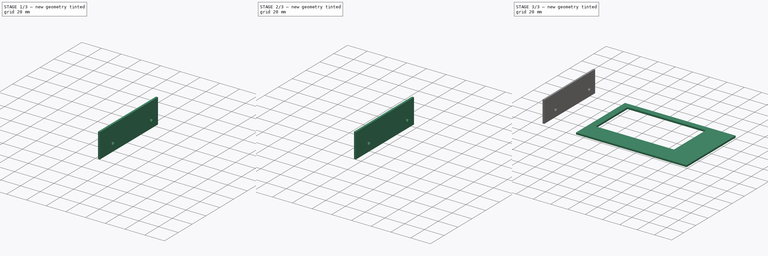
[diagram: build sequence overview — one tinted view per stage of 3, left to right]
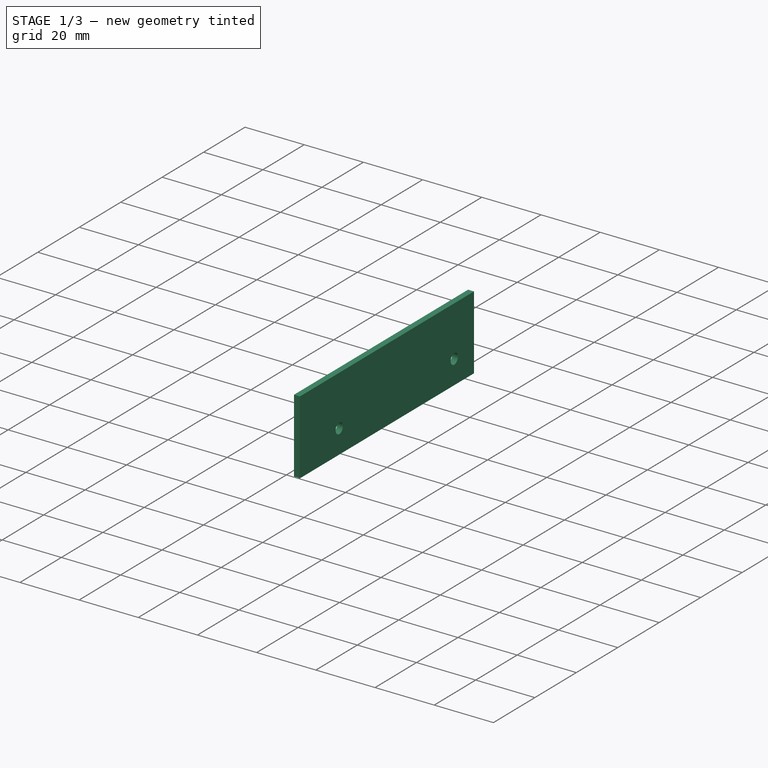
[diagram: stage 1 of 3 — iso view after this stage's code; geometry added in this stage tinted green]
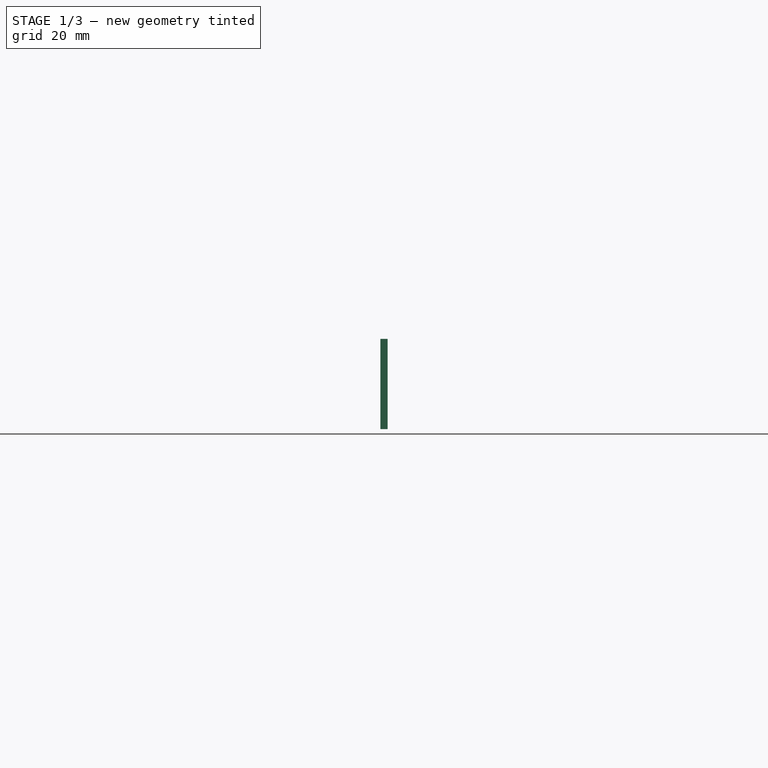
[diagram: stage 1 of 3 — front view after this stage's code; geometry added in this stage tinted green]
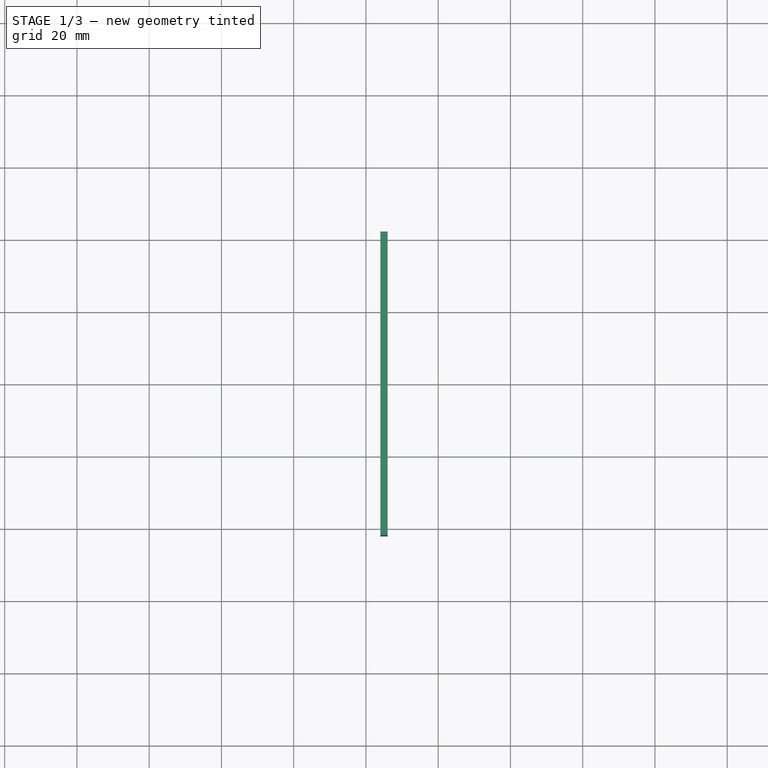
[diagram: stage 1 of 3 — top view after this stage's code; geometry added in this stage tinted green]
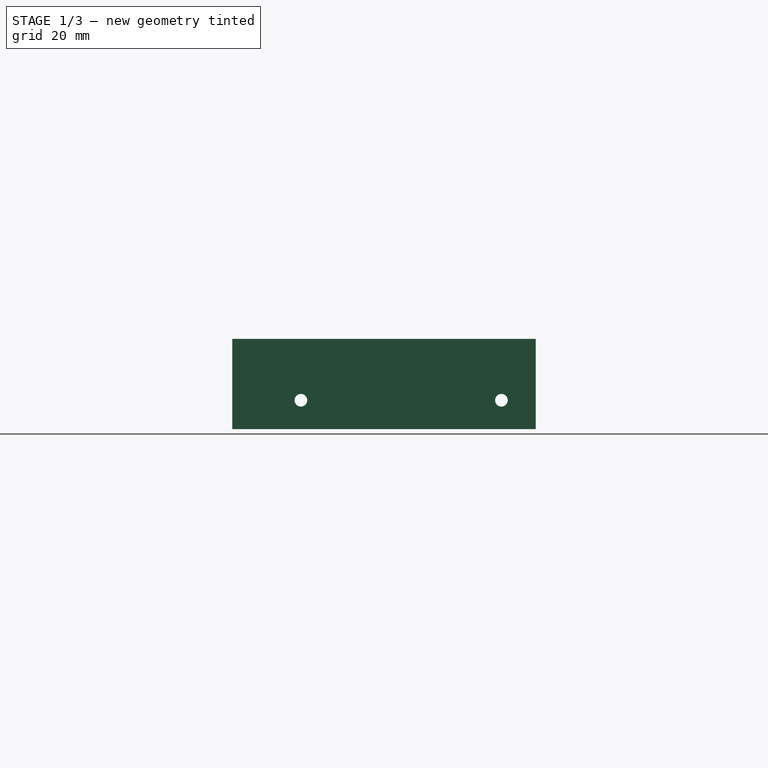
[diagram: stage 1 of 3 — right view after this stage's code; geometry added in this stage tinted green]
FCSTD DOCUMENT  (FreeCAD 0.19R24291 (Git))
Label: PCB_holder
License: All rights reserved
LicenseURL: http://en.wikipedia.org/wiki/All_rights_reserved
objects: Sketcher::SketchObject×5, Part::Extrusion×2, PartDesign::Body×2, Spreadsheet::Sheet×1, PartDesign::Pocket×1, PartDesign::Pad×1, App::Part×1, Part::Mirroring×1
note: 14 computed .brp shape members not serialized (recipe doc carries the construction recipe); baked Part::Feature solids carry a one-line shape summary decoded from their .brp

FEATURE [Sketcher::SketchObject] Sketch003
  FullyConstrained = true
  MapMode = 5
  Support = -> [XY_Plane002]
  expr: Constraints[31] = <<Params>>.Cutout_Margin_Top
  expr: Constraints[30] = <<Params>>.Cutout_Margin_Left
  expr: Constraints[21] = <<Params>>.Hole1_X
  expr: Constraints[19] = <<Params>>.Hole4_X
  expr: Constraints[18] = <<Params>>.Hole3_X
  expr: Constraints[43] = <<Params>>.Side_Height
  expr: Constraints[20] = <<Params>>.Hole2_X
  expr: Constraints[15] = <<Params>>.Hole4_Y
  expr: Constraints[32] = <<Params>>.Cutout_Margin_Right
  expr: Constraints[44] = <<Params>>.Cutout_Margin_Bottom
  expr: Constraints[8] = <<Params>>.PCB_Width
  expr: Constraints[13] = <<Params>>.Sockets_In_D / 2
  expr: Constraints[42] = <<Params>>.Case_Width
  expr: Constraints[12] = <<Params>>.Sockets_In_D / 2
  expr: Constraints[11] = <<Params>>.Sockets_In_D / 2
  expr: Constraints[10] = <<Params>>.Sockets_In_D / 2
  expr: Constraints[17] = <<Params>>.Hole3_Y
  expr: Constraints[9] = <<Params>>.PCB_Height
  expr: Constraints[14] = <<Params>>.Hole1_Y
  expr: Constraints[16] = <<Params>>.Hole2_Y
  sketch-geometry (16):
    g0: LineSegment StartX=-51 StartY=39 StartZ=0 EndX=55.35 EndY=39 EndZ=0
    g1: LineSegment StartX=55.35 StartY=39 StartZ=0 EndX=55.35 EndY=-24.15 EndZ=0
    g2: LineSegment StartX=55.35 StartY=-24.15 StartZ=0 EndX=-51 EndY=-24.15 EndZ=0
    g3: LineSegment StartX=-51 StartY=-24.15 StartZ=0 EndX=-51 EndY=39 EndZ=0
    g4: Circle CenterX=-46.3 CenterY=26.3 CenterZ=0 NormalX=0 NormalY=0 NormalZ=1 AngleXU=0 Radius=2.1
    g5: Circle CenterX=-46.3 CenterY=-9.15 CenterZ=0 NormalX=0 NormalY=0 NormalZ=1 AngleXU=0 Radius=2.1
    g6: Circle CenterX=50.6 CenterY=-9.15 CenterZ=0 NormalX=0 NormalY=0 NormalZ=1 AngleXU=0 Radius=2.1
    g7: Circle CenterX=50.6 CenterY=26.3 CenterZ=0 NormalX=0 NormalY=0 NormalZ=1 AngleXU=0 Radius=2.1
    g8: LineSegment StartX=-43.75 StartY=32.3 StartZ=0 EndX=46.85 EndY=32.3 EndZ=0
    g9: LineSegment StartX=46.85 StartY=32.3 StartZ=0 EndX=46.85 EndY=-38 EndZ=0
    g10: LineSegment StartX=46.85 StartY=-38 StartZ=0 EndX=-43.75 EndY=-38 EndZ=0
    g11: LineSegment StartX=-43.75 StartY=-38 StartZ=0 EndX=-43.75 EndY=32.3 EndZ=0
    g12: LineSegment StartX=-64 StartY=42 StartZ=0 EndX=64 EndY=42 EndZ=0
    g13: LineSegment StartX=64 StartY=42 StartZ=0 EndX=64 EndY=-42 EndZ=0
    g14: LineSegment StartX=64 StartY=-42 StartZ=0 EndX=-64 EndY=-42 EndZ=0
    g15: LineSegment StartX=-64 StartY=-42 StartZ=0 EndX=-64 EndY=42 EndZ=0
  constraints (47):
    c: Coincident(g0,g1)
    c: Coincident(g1,g2)
    c: Coincident(g2,g3)
    c: Coincident(g3,g0)
    c: Horizontal(g0)
    c: Horizontal(g2)
    c: Vertical(g1)
    c: Vertical(g3)
    c: DistanceX(g0,g0) = 106.35
    c: DistanceY(g3,g3) = 63.15
    c: Radius(g4) = 2.1
    c: Radius(g5) = 2.1
    c: Radius(g7) = 2.1
    c: Radius(g6) = 2.1
    c: DistanceX(g0,g4) = 4.7
    c: DistanceX(g2,g5) = 4.7
    c: DistanceX(g7,g0) = 4.75
    c: DistanceX(g6,g1) = 4.75
    c: DistanceY(g1,g6) = 15
    c: DistanceY(g2,g5) = 15
    c: DistanceY(g7,g0) = 12.7
    c: DistanceY(g4,g0) = 12.7
    c: Coincident(g8,g9)
    c: Coincident(g9,g10)
    c: Coincident(g10,g11)
    c: Coincident(g11,g8)
    c: Horizontal(g8)
    c: Horizontal(g10)
    c: Vertical(g9)
    c: Vertical(g11)
    c: DistanceX(g0,g8) = 7.25
    c: DistanceY(g8,g0) = 6.7
    c: DistanceX(g9,g1) = 8.5
    c: Coincident(g12,g13)
    c: Coincident(g13,g14)
    c: Coincident(g14,g15)
    c: Coincident(g15,g12)
    c: Horizontal(g12)
    c: Horizontal(g14)
    c: Vertical(g13)
    c: Vertical(g15)
    c: Symmetric(g12,g13,g-1)
    c: DistanceX(g12,g12) = 128
    c: DistanceY(g15,g15) = 84
    c: DistanceY(g13,g9) = 4
    c: DistanceX(g12,g0) = 13
    c: DistanceY(g0,g12) = 3
FEATURE [PartDesign::Pad] Pad
  Direction = (1,1,1)
  Length = 2
  Length2 = 100
  Profile = -> Sketch003
  Type = 0
  expr: Length = <<Params>>.Case_Thickness
FEATURE [Sketcher::SketchObject] Sketch004
  FullyConstrained = true
  MapMode = 5
  Placement = pos=(64,0,0) rot=(0.57735,0.57735,0.57735;2.0944rad)
  Support = -> [Pad]
  expr: Constraints[15] = <<Params>>.Side_Hole_X
  expr: Constraints[13] = <<Params>>.Side_Bottom_Hole_Y
  expr: Constraints[12] = <<Params>>.Side_Hole_D / 2
  expr: Constraints[11] = <<Params>>.Side_Hole_D / 2
  expr: Constraints[10] = <<Params>>.Case_Thickness
  expr: Constraints[17] = <<Params>>.Side_Height / 2
  expr: Constraints[14] = <<Params>>.Side_Top_Hole_Y
  expr: Constraints[9] = <<Params>>.Side_Width
  expr: Constraints[16] = <<Params>>.Side_Hole_X
  expr: Constraints[8] = <<Params>>.Side_Height
  sketch-geometry (6):
    g0: LineSegment StartX=-42 StartY=2 StartZ=0 EndX=42 EndY=2 EndZ=0
    g1: LineSegment StartX=42 StartY=2 StartZ=0 EndX=42 EndY=-23 EndZ=0
    g2: LineSegment StartX=42 StartY=-23 StartZ=0 EndX=-42 EndY=-23 EndZ=0
    g3: LineSegment StartX=-42 StartY=-23 StartZ=0 EndX=-42 EndY=2 EndZ=0
    g4: Circle CenterX=-23 CenterY=-15 CenterZ=0 NormalX=0 NormalY=0 NormalZ=1 AngleXU=0 Radius=1.75
    g5: Circle CenterX=32.5 CenterY=-15 CenterZ=0 NormalX=0 NormalY=0 NormalZ=1 AngleXU=0 Radius=1.75
  constraints (18):
    c: Coincident(g0,g1)
    c: Coincident(g1,g2)
    c: Coincident(g2,g3)
    c: Coincident(g3,g0)
    c: Horizontal(g0)
    c: Horizontal(g2)
    c: Vertical(g1)
    c: Vertical(g3)
    c: DistanceX(g0,g0) = 84
    c: DistanceY(g3,g3) = 25
    c: DistanceY(g-1,g0) = 2
    c: Radius(g5) = 1.75
    c: Radius(g4) = 1.75
    c: DistanceX(g4,g0) = 65
    c: DistanceX(g5,g0) = 9.5
    c: DistanceY(g5,g0) = 17
    c: DistanceY(g4,g0) = 17
    c: DistanceX(g-1,g1) = 42
FEATURE [PartDesign::Body] Body001
  Group = -> [Sketch003,Pad,Sketch004]
  Origin = -> Origin002
  Tip = -> Pad
FEATURE [App::Part] Part
  Group = -> [Body001]
  Origin = -> Origin001
FEATURE [Part::Extrusion] Extrude001
  Base = -> Sketch004
  Dir = (1,0,0)
  DirMode = 2
  FaceMakerClass = Part::FaceMakerBullseye
  LengthFwd = 2
  LengthRev = 0
  Solid = true
  Symmetric = false
  expr: LengthFwd = <<Params>>.Case_Thickness
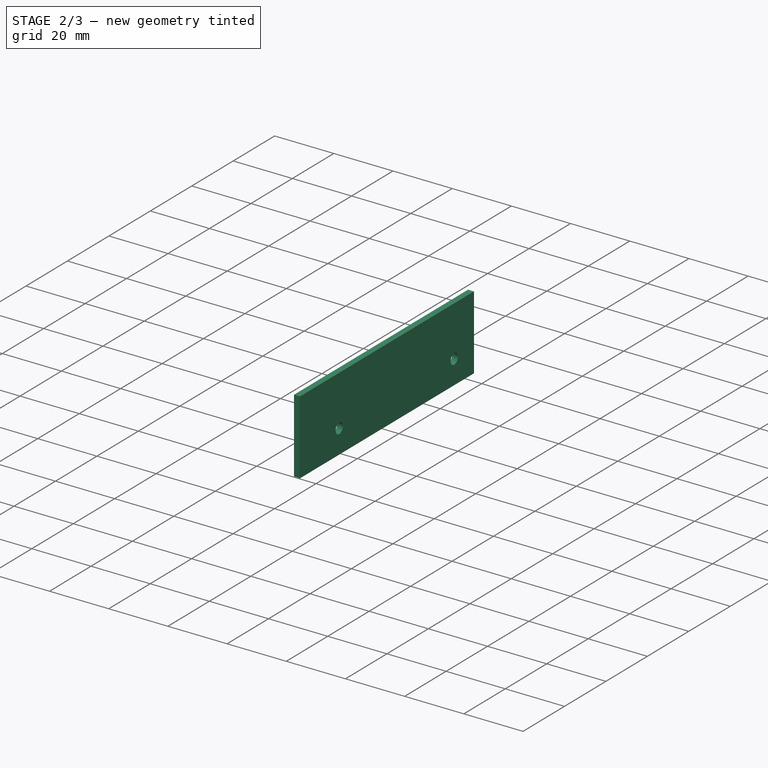
[diagram: stage 2 of 3 — iso view after this stage's code; geometry added in this stage tinted green]
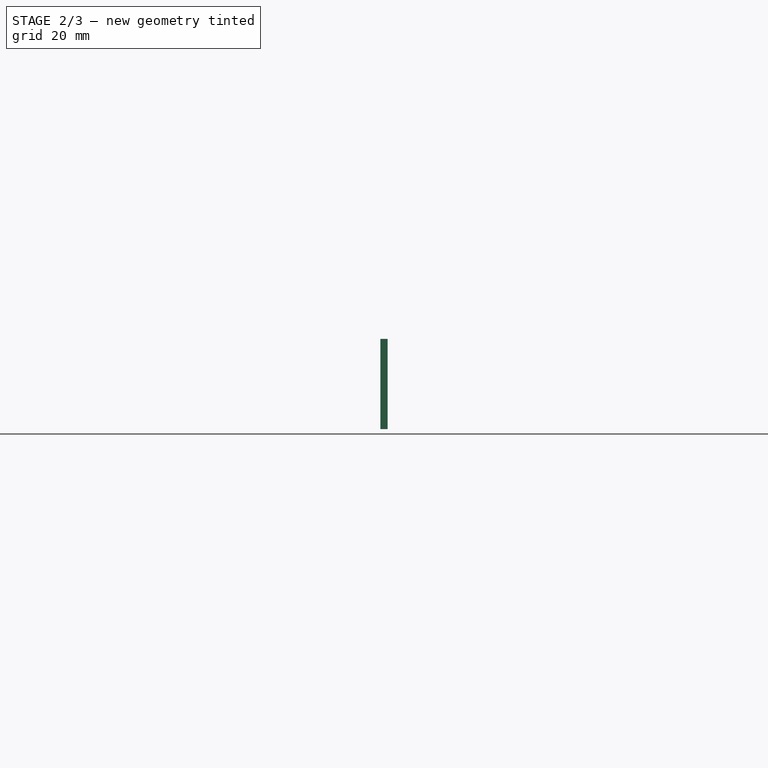
[diagram: stage 2 of 3 — front view after this stage's code; geometry added in this stage tinted green]
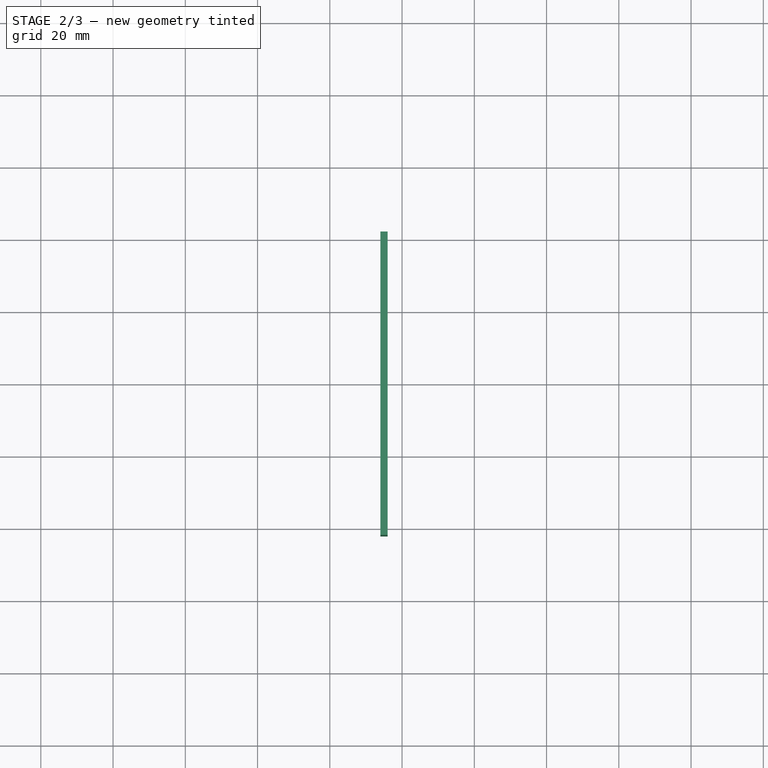
[diagram: stage 2 of 3 — top view after this stage's code; geometry added in this stage tinted green]
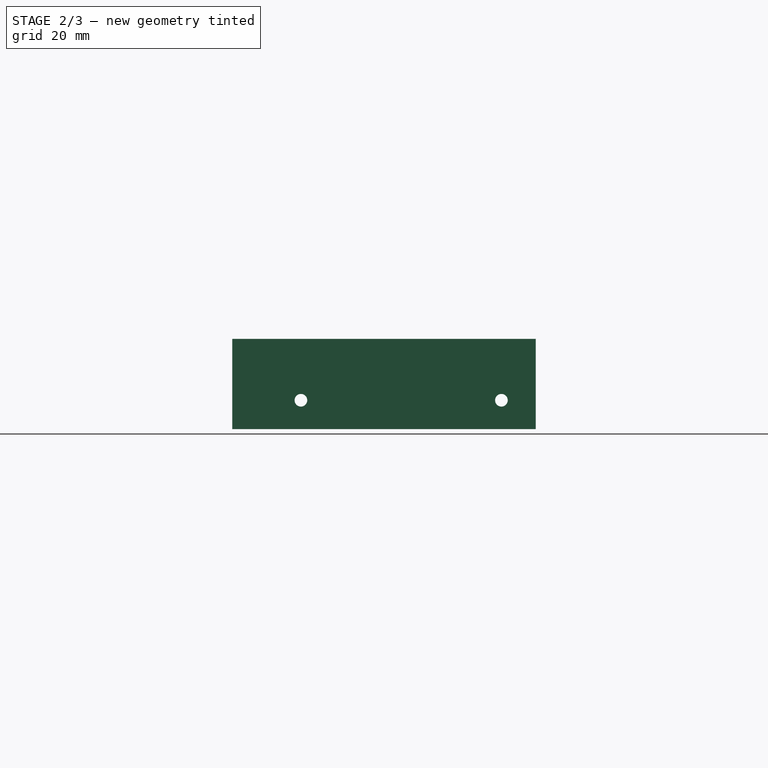
[diagram: stage 2 of 3 — right view after this stage's code; geometry added in this stage tinted green]
FEATURE [Part::Mirroring] Part__Mirroring  label="Extrude001 (Mirror #1)"
  Base = (0,0,0)
  Normal = (1,0,0)
  Source = -> Extrude001
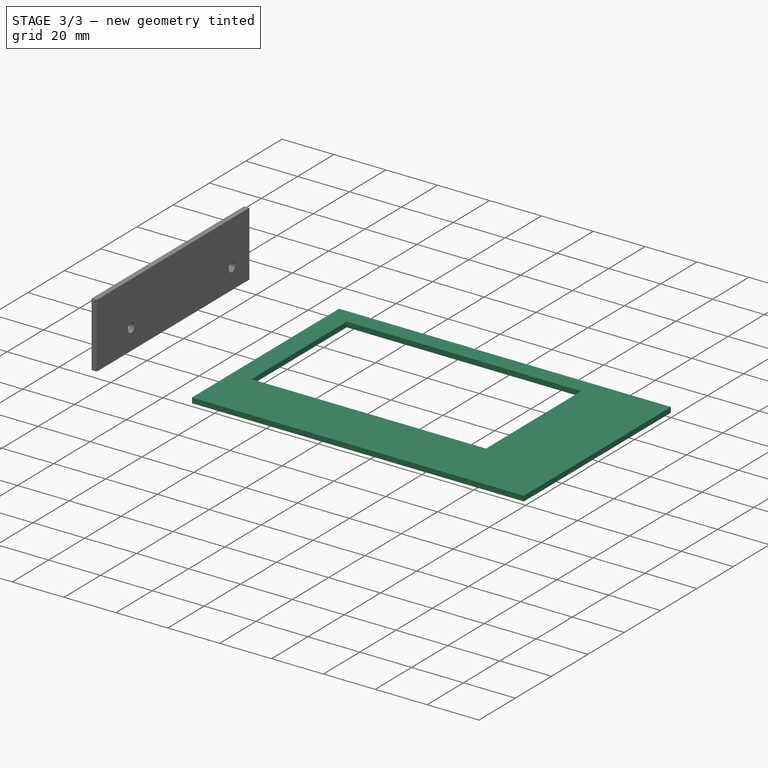
[diagram: stage 3 of 3 — iso view after this stage's code; geometry added in this stage tinted green]
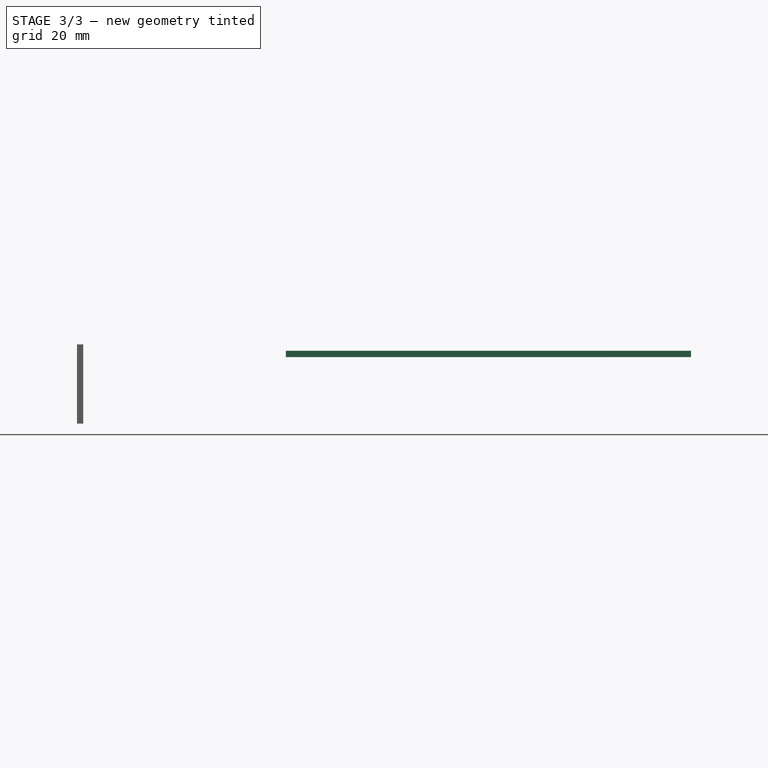
[diagram: stage 3 of 3 — front view after this stage's code; geometry added in this stage tinted green]
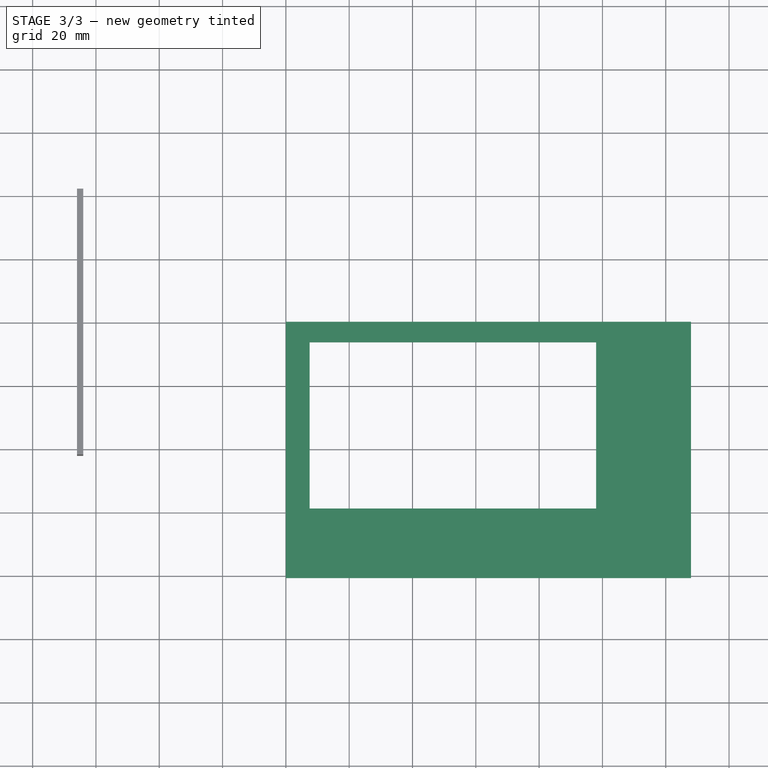
[diagram: stage 3 of 3 — top view after this stage's code; geometry added in this stage tinted green]
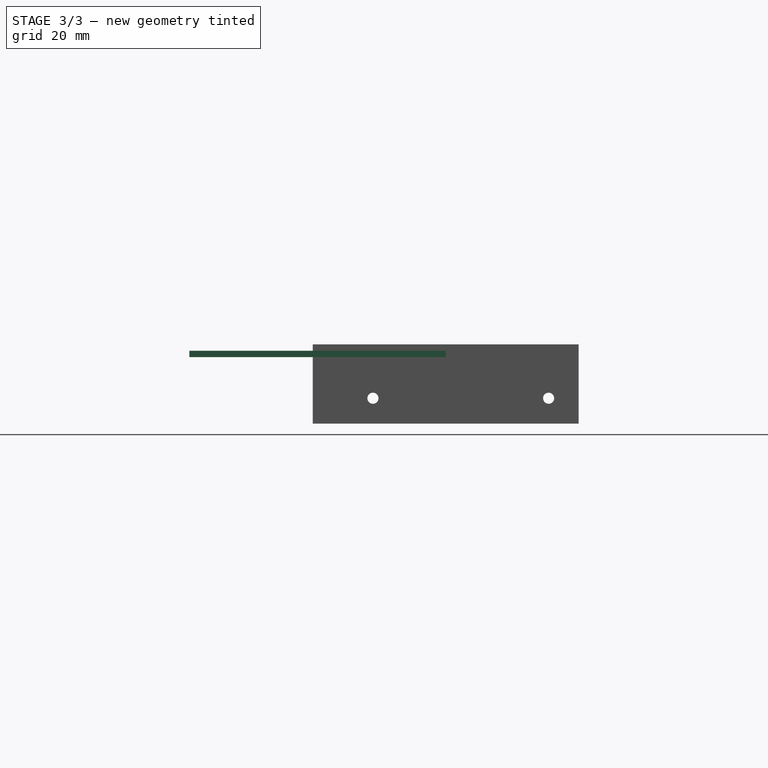
[diagram: stage 3 of 3 — right view after this stage's code; geometry added in this stage tinted green]
FEATURE [Spreadsheet::Sheet] Spreadsheet  label="Params"
  cells = A1=PCB Dimentions; A2=Height; B2(PCB_Height)=63.15; A3=Width; B3(PCB_Width)=106.35; A4=Thickness; B4(Case_Thickness)==2mm; A5=Holes Positions; B5=Hole 1; C5=Hole 2; D5=Hole 3; E5=Hole 4; A6=Vertical; B6(Hole1_X)=12.7; C6(Hole2_X)=12.7; D6(Hole3_X)==15mm; E6(Hole4_X)=15; A7=Horizontal; B7(Hole1_Y)=4.7; C7(Hole2_Y)=4.75; D7(Hole3_Y)=4.75; E7(Hole4_Y)=4.7; A9=Case; A10=Height; B10(Case_Height)=81; A11=Width; B11(Case_Width)=128; A12=Cutout Margins; B12=Left; C12=Top; D12=Right; E12=Bottom; B13(Cutout_Margin_Left)=7.25; C13(Cutout_Margin_Top)=6.7; D13(Cutout_Margin_Right)=8.5; E13(Cutout_Margin_Bottom)==4mm; A14=Socket Height; B14(Socket_Height)==4mm; A15=Socket inner diameter; B15(Sockets_In_D)==4.2mm; A16=Socket External Diameter; B16(Sockets_Out_D)=5.5; A18=Side walls; A19=Height; B19(Side_Height)==84mm; A20=Width; B20(Side_Width)==25mm; A21=Top Hole; B21(Side_Top_Hole_Y)==9.5mm; A22=Bottom Hole; B22(Side_Bottom_Hole_Y)==65mm; A23=Holes X; B23(Side_Hole_X)==17mm; A24=Hole Diamerer; B24(Side_Hole_D)==3.5mm
FEATURE [Sketcher::SketchObject] Sketch  label="Sockets"
  FullyConstrained = true
  MapMode = 5
  Support = -> [XY_Plane]
  expr: Constraints[0] = <<Params>>.Hole1_Y
  expr: Constraints[18] = <<Params>>.Hole2_Y
  expr: Constraints[2] = <<Params>>.Sockets_In_D / 2
  expr: Constraints[10] = <<Params>>.Sockets_In_D / 2
  expr: Constraints[4] = <<Params>>.Sockets_Out_D / 2
  expr: Constraints[1] = -<<Params>>.Hole1_X
  expr: Constraints[12] = <<Params>>.Sockets_Out_D / 2
  expr: Constraints[6] = <<Params>>.Sockets_In_D / 2
  expr: Constraints[7] = <<Params>>.Sockets_Out_D / 2
  expr: Constraints[13] = <<Params>>.Sockets_In_D / 2
  expr: Constraints[11] = <<Params>>.Sockets_Out_D / 2
  expr: Constraints[14] = <<Params>>.Hole4_X
  expr: Constraints[17] = <<Params>>.Hole4_Y
  expr: Constraints[15] = <<Params>>.Hole2_X
  expr: Constraints[16] = <<Params>>.Hole3_X
  expr: Constraints[19] = <<Params>>.Hole3_Y
  sketch-geometry (8):
    g0: Circle CenterX=4.7 CenterY=-12.7 CenterZ=0 NormalX=0 NormalY=0 NormalZ=1 AngleXU=0 Radius=2.1
    g1: Circle CenterX=4.7 CenterY=-12.7 CenterZ=0 NormalX=0 NormalY=0 NormalZ=1 AngleXU=0 Radius=2.75
    g2: Circle CenterX=4.75 CenterY=-12.7 CenterZ=0 NormalX=0 NormalY=0 NormalZ=1 AngleXU=0 Radius=2.75
    g3: Circle CenterX=4.75 CenterY=-12.7 CenterZ=0 NormalX=0 NormalY=0 NormalZ=1 AngleXU=0 Radius=2.1
    g4: Circle CenterX=4.7 CenterY=-15 CenterZ=0 NormalX=0 NormalY=0 NormalZ=1 AngleXU=0 Radius=2.75
    g5: Circle CenterX=4.7 CenterY=-15 CenterZ=0 NormalX=0 NormalY=0 NormalZ=1 AngleXU=0 Radius=2.1
    g6: Circle CenterX=4.75 CenterY=-15 CenterZ=0 NormalX=0 NormalY=0 NormalZ=1 AngleXU=0 Radius=2.75
    g7: Circle CenterX=4.75 CenterY=-15 CenterZ=0 NormalX=0 NormalY=0 NormalZ=1 AngleXU=0 Radius=2.1
  constraints (20):
    c: DistanceX(g-1,g0) = 4.7
    c: DistanceY(g-1,g0) = -12.7
    c: Radius(g0) = 2.1
    c: Coincident(g1,g0)
    c: Radius(g1) = 2.75
    c: Coincident(g3,g2)
    c: Radius(g3) = 2.1
    c: Radius(g2) = 2.75
    c: Coincident(g5,g4)
    c: Coincident(g7,g6)
    c: Radius(g7) = 2.1
    c: Radius(g6) = 2.75
    c: Radius(g4) = 2.75
    c: Radius(g5) = 2.1
    c: DistanceY(g4,g-1) = 15
    c: DistanceY(g2,g-1) = 12.7
    c: DistanceY(g6,g-1) = 15
    c: DistanceX(g-1,g4) = 4.7
    c: DistanceX(g-1,g2) = 4.75
    c: DistanceX(g-1,g6) = 4.75
FEATURE [Sketcher::SketchObject] Sketch001  label="Case"
  FullyConstrained = true
  MapMode = 5
  Support = -> [XY_Plane]
  expr: Constraints[9] = <<Params>>.Case_Width
  expr: Constraints[10] = <<Params>>.Case_Height
  sketch-geometry (4):
    g0: LineSegment StartX=0 StartY=0 StartZ=0 EndX=128 EndY=0 EndZ=0
    g1: LineSegment StartX=128 StartY=0 StartZ=0 EndX=128 EndY=-81 EndZ=0
    g2: LineSegment StartX=128 StartY=-81 StartZ=0 EndX=0 EndY=-81 EndZ=0
    g3: LineSegment StartX=0 StartY=-81 StartZ=0 EndX=0 EndY=0 EndZ=0
  constraints (11):
    c: Coincident(g0,g1)
    c: Coincident(g1,g2)
    c: Coincident(g2,g3)
    c: Coincident(g3,g0)
    c: Horizontal(g0)
    c: Horizontal(g2)
    c: Vertical(g1)
    c: Vertical(g3)
    c: Coincident(g0,g-1)
    c: DistanceX(g0,g0) = 128
    c: DistanceY(g3,g3) = 81
FEATURE [Part::Extrusion] Extrude
  Base = -> Sketch001
  Dir = (0,0,1)
  DirMode = 2
  FaceMakerClass = Part::FaceMakerBullseye
  LengthFwd = 0
  LengthRev = 2
  Solid = true
  Symmetric = false
  expr: LengthRev = <<Params>>.Case_Thickness
FEATURE [Sketcher::SketchObject] Sketch002  label="Hole"
  FullyConstrained = true
  MapMode = 5
  Support = -> [Extrude]
  sketch-geometry (4):
    g0: LineSegment StartX=7.5 StartY=-6.5 StartZ=0 EndX=98 EndY=-6.5 EndZ=0
    g1: LineSegment StartX=98 StartY=-6.5 StartZ=0 EndX=98 EndY=-59 EndZ=0
    g2: LineSegment StartX=98 StartY=-59 StartZ=0 EndX=7.5 EndY=-59 EndZ=0
    g3: LineSegment StartX=7.5 StartY=-59 StartZ=0 EndX=7.5 EndY=-6.5 EndZ=0
  constraints (12):
    c: Coincident(g0,g1)
    c: Coincident(g1,g2)
    c: Coincident(g2,g3)
    c: Coincident(g3,g0)
    c: Horizontal(g0)
    c: Horizontal(g2)
    c: Vertical(g1)
    c: Vertical(g3)
    c: DistanceX(g-1,g0) = 7.5
    c: DistanceY(g0,g-1) = 6.5
    c: DistanceY(g1,g-1) = 59
    c: DistanceX(g-1,g1) = 98
FEATURE [PartDesign::Body] Body
  Group = -> [Sketch,Sketch001,Sketch002]
  Origin = -> Origin
FEATURE [PartDesign::Pocket] Pocket
  AllowMultiFace = false
  Length = 5
  Length2 = 100
  Profile = -> Sketch002
  Type = 1
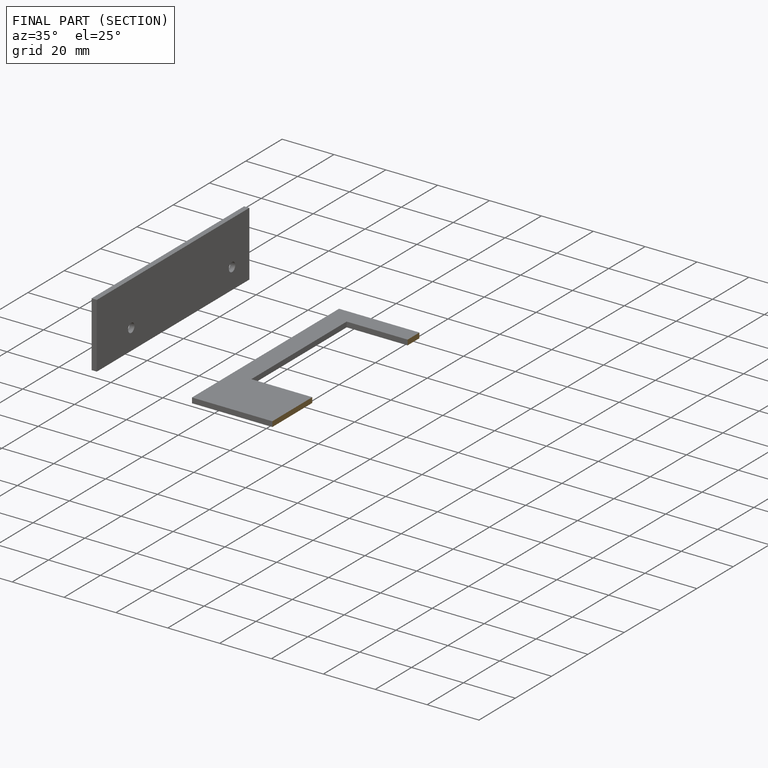
[diagram: finished part — half-section view (interior)]
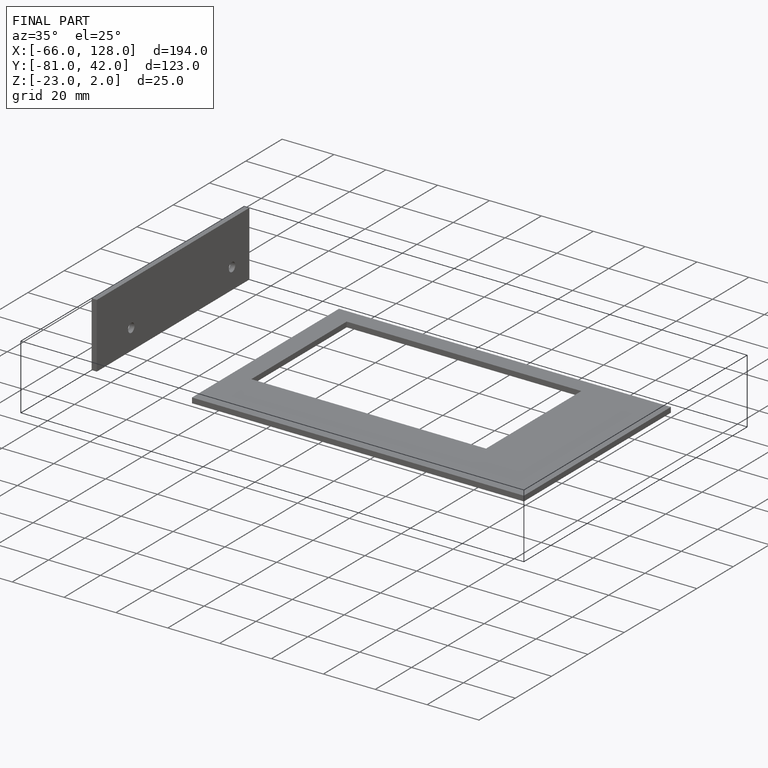
[diagram: finished part — iso view with bounding-box wireframe]
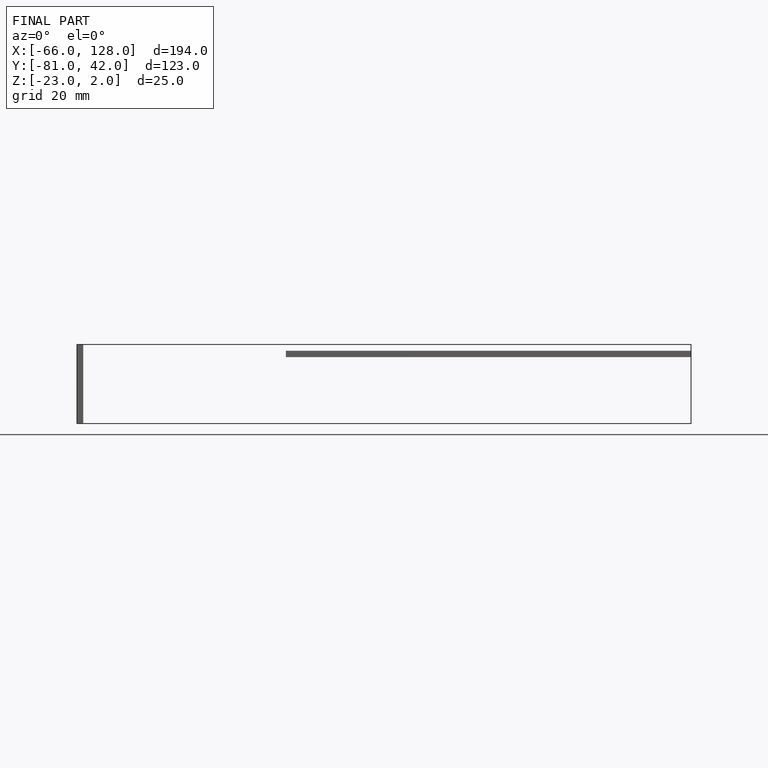
[diagram: finished part — front view with bounding-box wireframe]
